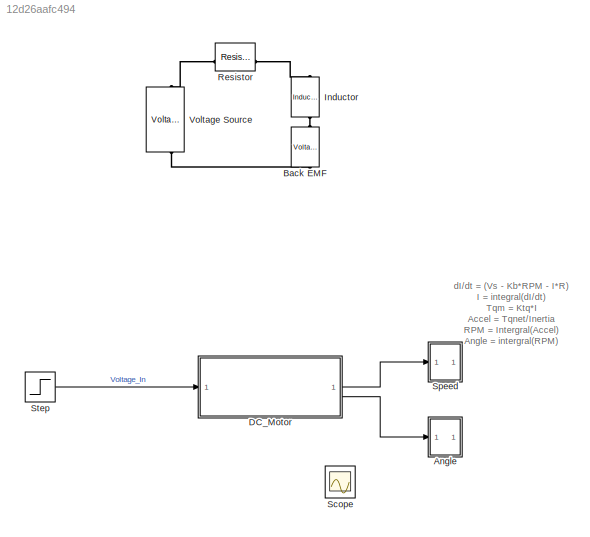
MODEL slx_12d26aafc494
KIND model
CONFIG AbsTol = auto
CONFIG EnableMultiTasking = off
CONFIG FixedStep = auto
CONFIG MaxStep = auto
CONFIG MinStep = auto
CONFIG RelTol = 1e-3
CONFIG SampleTimeConstraint = Unconstrained
CONFIG SolverName = VariableStepAuto
CONFIG StartTime = 0.0
CONFIG StopTime = 100.0
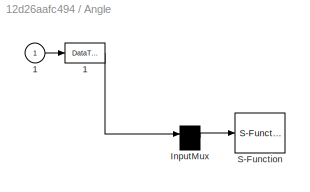
BLOCK [SubSystem] Angle
  CopyFcn = plecs('sl', 303);
  DeleteFcn = plecs('sl', 305);
  DestroyFcn = plecs('sl', 307);
  ErrorFcn = plerrorfcn
  InitFcn = plecs('sl', 314);
  LoadFcn = plecs('sl', 300);
  NameChangeFcn = plecs('sl', 310);
  OpenFcn = plecs('sl', 302);
  PreSaveFcn = plecs('sl', 311);
  StartFcn = plecs('sl', 308);
  StopFcn = plecs('sl', 309);
  UndoDeleteFcn = plecs('sl', 306);
BLOCK [DataTypeConversion] Angle/ 1 
BLOCK [Mux] Angle/ InputMux 
  Inputs = 1
BLOCK [S-Function] Angle/ S-Function 
  EnableBusSupport = off
  FunctionName = plecs
  SFcnIsStateOwnerBlock = off
  SFunctionDeploymentMode = off
BLOCK [Inport] Angle/1
BLOCK [Reference] Back EMF  REF=ee_lib/Sources/Voltage Source
  Commented = on
  NameLocation = right
  SourceBlock = ee_lib/Sources/Voltage Source
  SourceType = Voltage Source
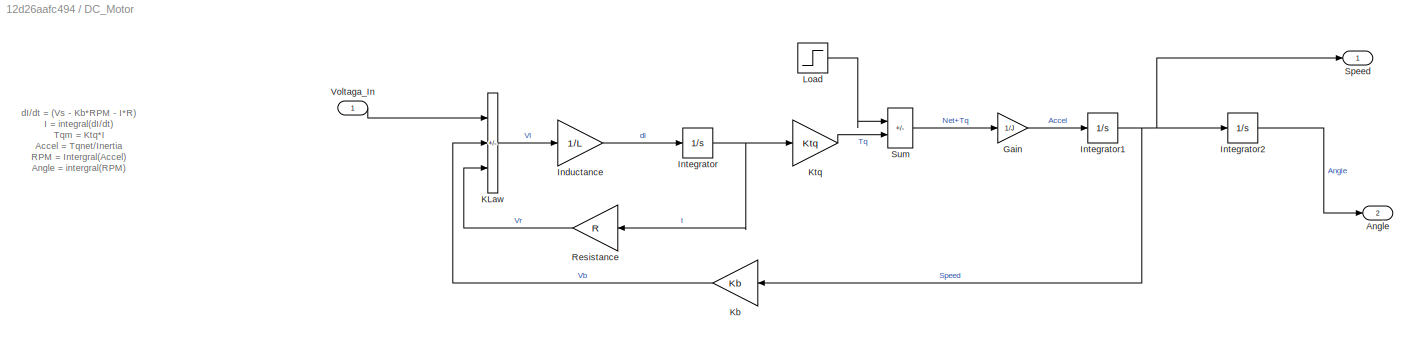
BLOCK [SubSystem] DC_Motor
BLOCK [Outport] DC_Motor/Angle
  Port = 2
BLOCK [Gain] DC_Motor/Gain
  Gain = 1/J
BLOCK [Gain] DC_Motor/Inductance
  Gain = 1/L
BLOCK [Integrator] DC_Motor/Integrator
BLOCK [Integrator] DC_Motor/Integrator1
BLOCK [Integrator] DC_Motor/Integrator2
BLOCK [Sum] DC_Motor/KLaw
  IconShape = rectangular
  Inputs = +--
BLOCK [Gain] DC_Motor/Kb
  Gain = Kb
BLOCK [Gain] DC_Motor/Ktq
  Gain = Ktq
BLOCK [Step] DC_Motor/Load
  After = 200
  SampleTime = 0
  Time = 50
BLOCK [Gain] DC_Motor/Resistance
  Gain = R
BLOCK [Outport] DC_Motor/Speed
BLOCK [Sum] DC_Motor/Sum
  IconShape = rectangular
  Inputs = |-+
BLOCK [Inport] DC_Motor/Voltaga_In
BLOCK [Reference] Inductor  REF=ee_lib/Passive/Inductor
  Commented = on
  NameLocation = right
  SourceBlock = ee_lib/Passive/Inductor
  SourceType = Inductor
BLOCK [Reference] Resistor  REF=fl_lib/Electrical/Electrical Elements/Resistor
  Commented = on
  NameLocation = top
  SourceBlock = fl_lib/Electrical/Electrical Elements/Resistor
  SourceType = Resistor
BLOCK [Scope] Scope
  Floating = off
  NumInputPorts = 3
  ScopeSpecificationString = Simulink.scopes.TimeScopeBlockCfg('CurrentConfiguration', extmgr.ConfigurationSet(extmgr.Configuration('Core','General UI',true),extmgr.Configuration('Core','Source UI',true),extmgr.Configuration('Sources','WiredSimulink',true),extmgr.Configuration('Visuals','Time Domain',true,'SerializedDisplays',{struct('MinYLimReal','-10','MaxYLimReal','10','YLabelReal','','MinYLimMag','0','MaxYLimMag','10','Le...<+2761ch>
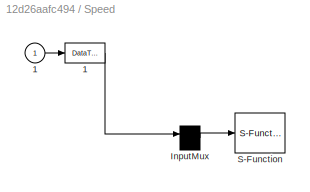
BLOCK [SubSystem] Speed
  CopyFcn = plecs('sl', 303);
  DeleteFcn = plecs('sl', 305);
  DestroyFcn = plecs('sl', 307);
  ErrorFcn = plerrorfcn
  InitFcn = plecs('sl', 314);
  LoadFcn = plecs('sl', 300);
  NameChangeFcn = plecs('sl', 310);
  OpenFcn = plecs('sl', 302);
  PreSaveFcn = plecs('sl', 311);
  StartFcn = plecs('sl', 308);
  StopFcn = plecs('sl', 309);
  UndoDeleteFcn = plecs('sl', 306);
BLOCK [DataTypeConversion] Speed/ 1 
BLOCK [Mux] Speed/ InputMux 
  Inputs = 1
BLOCK [S-Function] Speed/ S-Function 
  EnableBusSupport = off
  FunctionName = plecs
  SFcnIsStateOwnerBlock = off
  SFunctionDeploymentMode = off
BLOCK [Inport] Speed/1
BLOCK [Step] Step
  After = 12
  SampleTime = 0
BLOCK [Reference] Voltage Source  REF=ee_lib/Sources/Voltage Source
  Commented = on
  NameLocation = left
  SourceBlock = ee_lib/Sources/Voltage Source
  SourceType = Voltage Source
ANNOTATION (root): dI/dt = (Vs - Kb*RPM - I*R) I = integral(dI/dt) Tqm = Ktq*I Accel = Tqnet/Inertia RPM = Intergral(Accel) Angle = intergral(RPM)
ANNOTATION DC_Motor: dI/dt = (Vs - Kb*RPM - I*R) I = integral(dI/dt) Tqm = Ktq*I Accel = Tqnet/Inertia RPM = Intergral(Accel) Angle = intergral(RPM)
LINE Angle/ 1 :1 -> Angle/ InputMux :1
LINE Angle/ InputMux :1 -> Angle/ S-Function :1
LINE Angle/1:1 -> Angle/ 1 :1
LINE DC_Motor/Gain:1 -> DC_Motor/Integrator1:1
LINE DC_Motor/Inductance:1 -> DC_Motor/Integrator:1
NET DC_Motor/Integrator1:1 -> DC_Motor/Integrator2:1, DC_Motor/Kb:1, DC_Motor/Speed:1
LINE DC_Motor/Integrator2:1 -> DC_Motor/Angle:1
NET DC_Motor/Integrator:1 -> DC_Motor/Ktq:1, DC_Motor/Resistance:1
LINE DC_Motor/KLaw:1 -> DC_Motor/Inductance:1
LINE DC_Motor/Kb:1 -> DC_Motor/KLaw:2
LINE DC_Motor/Ktq:1 -> DC_Motor/Sum:2
LINE DC_Motor/Load:1 -> DC_Motor/Sum:1
LINE DC_Motor/Resistance:1 -> DC_Motor/KLaw:3
LINE DC_Motor/Sum:1 -> DC_Motor/Gain:1
LINE DC_Motor/Voltaga_In:1 -> DC_Motor/KLaw:1
LINE DC_Motor:1 -> Speed:1
LINE DC_Motor:2 -> Angle:1
LINE Speed/ 1 :1 -> Speed/ InputMux :1
LINE Speed/ InputMux :1 -> Speed/ S-Function :1
LINE Speed/1:1 -> Speed/ 1 :1
LINE Step:1 -> DC_Motor:1
PLINE Back EMF:LConn1 -- Inductor:RConn1
PLINE Back EMF:RConn1 -- Voltage Source:RConn1
PLINE Inductor:LConn1 -- Resistor:RConn1
PLINE Resistor:LConn1 -- Voltage Source:LConn1
note: NET lines group one-source signal fan-out (src -> all destinations, sorted); 1:1 wires keep LINE
